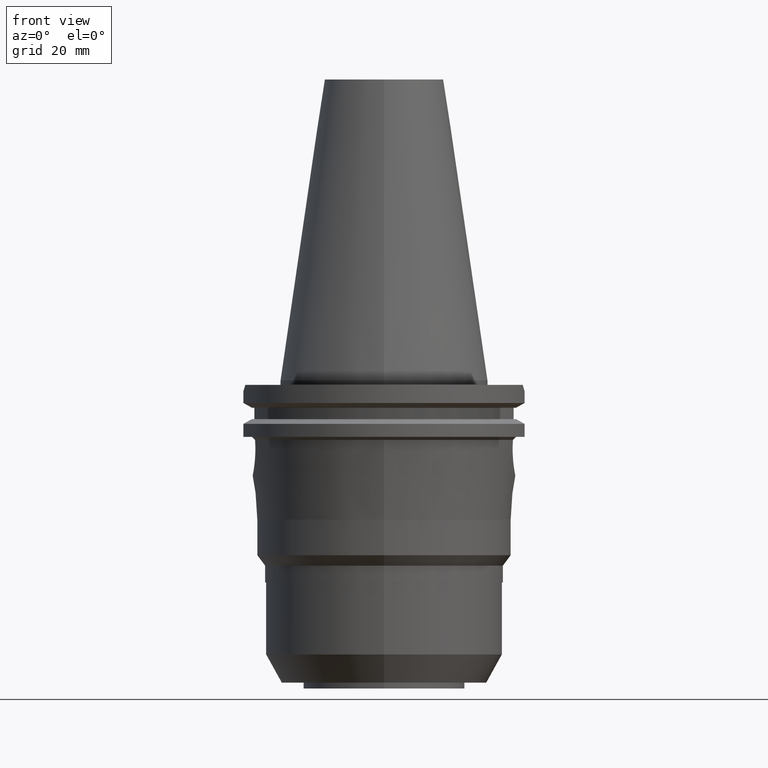
[diagram: clean part render]
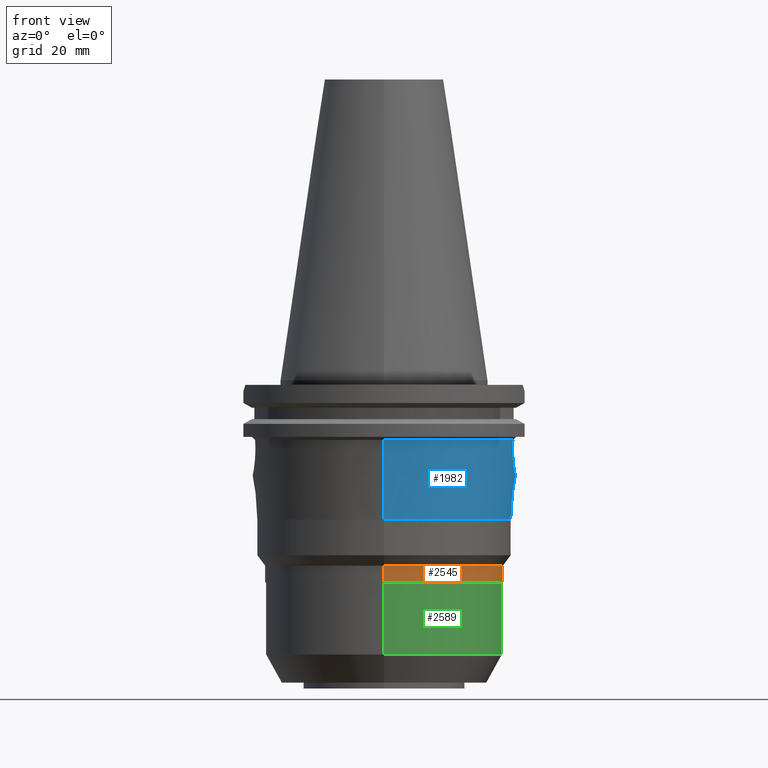
[diagram: same view with three faces highlighted in distinct colors, each labeled with its STEP entity id]
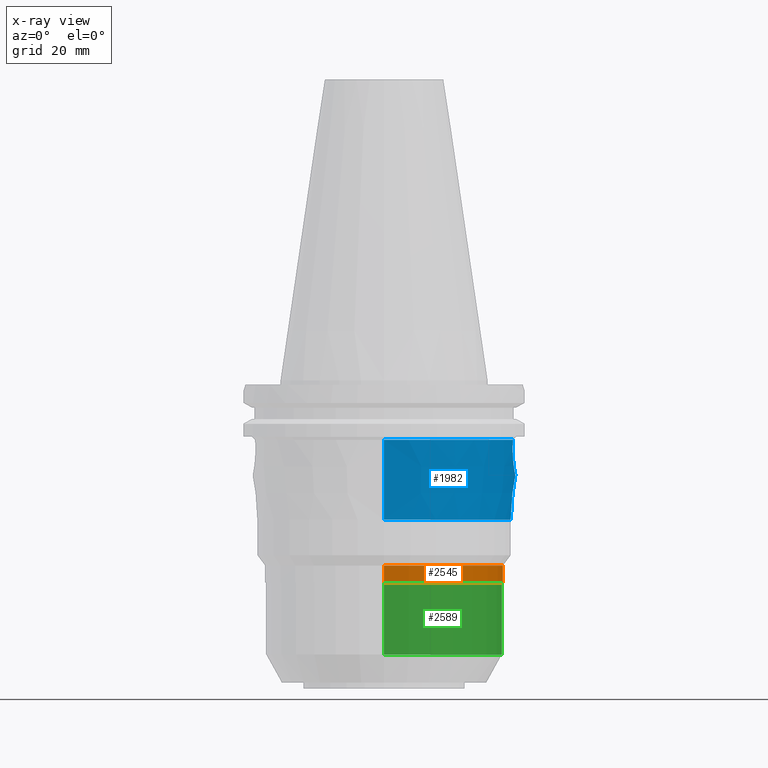
[diagram: x-ray of the same camera — body ghosted, the three highlighted faces saturated]
A machine part, front view with three faces highlighted in distinct colors.
The next image is the same camera in x-ray (body ghosted, the three faces saturated) — at least one of them is partly hidden behind the body in this view.
Their STEP definitions:

[orange] entity #2545 — the highlighted cylindrical surface (partial cylindrical patch) has radius 40.35 mm, axis along (0, 0, -1).
#1106=CARTESIAN_POINT('',(0.E0,0.E0,-6.251666877729E1));
#1107=DIRECTION('',(0.E0,0.E0,-1.E0));
#1108=DIRECTION('',(0.E0,1.E0,0.E0));
#1109=AXIS2_PLACEMENT_3D('',#1106,#1107,#1108);
#1145=DIRECTION('',(0.E0,2.988031265328E-13,-1.E0));
#1146=VECTOR('',#1145,5.683331222709E0);
#1147=CARTESIAN_POINT('',(0.E0,-4.035E1,-6.251666877729E1));
#1148=LINE('',#1147,#1146);
#1152=DIRECTION('',(0.E0,-2.975529042460E-13,-1.E0));
#1153=VECTOR('',#1152,5.683331222709E0);
#1154=CARTESIAN_POINT('',(0.E0,4.035E1,-6.251666877729E1));
#1155=LINE('',#1154,#1153);
#1159=CARTESIAN_POINT('',(0.E0,2.594781638033E-14,-6.82E1));
#1160=DIRECTION('',(0.E0,0.E0,1.E0));
#1161=DIRECTION('',(0.E0,-1.E0,0.E0));
#1162=AXIS2_PLACEMENT_3D('',#1159,#1160,#1161);
#1555=CARTESIAN_POINT('',(0.E0,-4.035E1,-6.82E1));
#1556=CARTESIAN_POINT('',(0.E0,4.035E1,-6.82E1));
#1557=VERTEX_POINT('',#1555);
#1558=VERTEX_POINT('',#1556);
#1559=CARTESIAN_POINT('',(0.E0,4.035E1,-6.251666877729E1));
#1560=VERTEX_POINT('',#1559);
#1561=CARTESIAN_POINT('',(0.E0,-4.035E1,-6.251666877729E1));
#1562=VERTEX_POINT('',#1561);
#2533=CARTESIAN_POINT('',(0.E0,2.594781638033E-14,1.1188E2));
#2534=DIRECTION('',(0.E0,0.E0,-1.E0));
#2535=DIRECTION('',(0.E0,-1.E0,0.E0));
#2536=AXIS2_PLACEMENT_3D('',#2533,#2534,#2535);
#2537=CYLINDRICAL_SURFACE('',#2536,4.035E1);
#2538=ORIENTED_EDGE('',*,*,#2523,.T.);
#2540=ORIENTED_EDGE('',*,*,#2539,.F.);
#2541=ORIENTED_EDGE('',*,*,#2526,.F.);
#2542=ORIENTED_EDGE('',*,*,#2497,.F.);
#2543=EDGE_LOOP('',(#2538,#2540,#2541,#2542));
#2544=FACE_OUTER_BOUND('',#2543,.F.);
#1110=CIRCLE('',#1109,4.035E1);
#1163=CIRCLE('',#1162,4.035E1);
#2497=EDGE_CURVE('',#1560,#1562,#1110,.T.);
#2523=EDGE_CURVE('',#1560,#1558,#1155,.T.);
#2526=EDGE_CURVE('',#1562,#1557,#1148,.T.);
#2539=EDGE_CURVE('',#1557,#1558,#1163,.T.);
#2545=ADVANCED_FACE('',(#2544),#2537,.T.);

[blue] entity #1982 — the highlighted conical surface has half-angle 5.111 deg.
#273=CARTESIAN_POINT('',(4.353268857043E1,1.292335010828E1,-2.004999916311E1));
#315=CARTESIAN_POINT('',(4.353268724557E1,-1.292335466217E1,-2.004999872561E1));
#316=CARTESIAN_POINT('',(4.346713339189E1,-1.286004492173E1,-2.095406222624E1));
#317=CARTESIAN_POINT('',(4.339358714810E1,-1.254361217707E1,-2.275600169048E1));
#318=CARTESIAN_POINT('',(4.344966396984E1,-1.149295744251E1,-2.533365231666E1));
#319=CARTESIAN_POINT('',(4.362941724810E1,-9.933935771800E0,-2.761192343704E1));
#320=CARTESIAN_POINT('',(4.387373557662E1,-7.910855387955E0,-2.953135237471E1));
#321=CARTESIAN_POINT('',(4.411638673118E1,-5.490403959350E0,-3.099201355121E1));
#322=CARTESIAN_POINT('',(4.429069680968E1,-2.808943056756E0,-3.189631965222E1));
#323=CARTESIAN_POINT('',(4.433267309078E1,-9.361407318624E-1,
-3.210000118751E1));
#324=CARTESIAN_POINT('',(4.433267309078E1,3.530343332241E-14,
-3.210000118751E1));
#329=CARTESIAN_POINT('',(4.433267309078E1,3.530343332241E-14,
-3.210000118751E1));
#330=CARTESIAN_POINT('',(4.433267309078E1,9.234150173798E-1,-3.210000118751E1));
#331=CARTESIAN_POINT('',(4.429185837563E1,2.776579329998E0,-3.190192571770E1));
#332=CARTESIAN_POINT('',(4.411972627293E1,5.450561089102E0,-3.101013136943E1));
#333=CARTESIAN_POINT('',(4.387749554908E1,7.878259022296E0,-2.955679686826E1));
#334=CARTESIAN_POINT('',(4.363176094144E1,9.914952546093E0,-2.763553976695E1));
#335=CARTESIAN_POINT('',(4.345022797713E1,1.148577285270E1,-2.534909235121E1));
#336=CARTESIAN_POINT('',(4.339335768296E1,1.254318337487E1,-2.275996780525E1));
#337=CARTESIAN_POINT('',(4.346708413652E1,1.285999140031E1,-2.095476060189E1));
#338=CARTESIAN_POINT('',(4.353268857043E1,1.292335010828E1,-2.004999916311E1));
#343=CARTESIAN_POINT('',(0.E0,0.E0,-2.005E1));
#344=DIRECTION('',(0.E0,0.E0,1.E0));
#345=DIRECTION('',(9.586493648216E-1,2.845898721445E-1,0.E0));
#346=AXIS2_PLACEMENT_3D('',#343,#344,#345);
#351=DIRECTION('',(0.E0,-8.908552138387E-2,-9.960239805746E-1));
#352=VECTOR('',#351,2.705758146953E1);
#353=CARTESIAN_POINT('',(0.E0,4.541043875260E1,-2.005E1));
#354=LINE('',#353,#352);
#358=CARTESIAN_POINT('',(0.E0,0.E0,-4.7E1));
#359=DIRECTION('',(0.E0,0.E0,-1.E0));
#360=DIRECTION('',(0.E0,1.E0,0.E0));
#361=AXIS2_PLACEMENT_3D('',#358,#359,#360);
#366=CARTESIAN_POINT('',(0.E0,0.E0,-2.005E1));
#367=DIRECTION('',(0.E0,0.E0,1.E0));
#368=DIRECTION('',(0.E0,-1.E0,0.E0));
#369=AXIS2_PLACEMENT_3D('',#366,#367,#368);
#395=DIRECTION('',(0.E0,8.908552138387E-2,-9.960239805746E-1));
#396=VECTOR('',#395,2.705758146953E1);
#397=CARTESIAN_POINT('',(0.E0,-4.541043875260E1,-2.005E1));
#398=LINE('',#397,#396);
#793=CARTESIAN_POINT('',(4.353268724557E1,-1.292335466217E1,-2.004999872561E1));
#1567=CARTESIAN_POINT('',(0.E0,4.3E1,-4.7E1));
#1568=VERTEX_POINT('',#1567);
#1569=CARTESIAN_POINT('',(0.E0,-4.3E1,-4.7E1));
#1570=VERTEX_POINT('',#1569);
#1573=CARTESIAN_POINT('',(0.E0,-4.541043875260E1,-2.005E1));
#1574=VERTEX_POINT('',#1573);
#1575=CARTESIAN_POINT('',(0.E0,4.541043875260E1,-2.005E1));
#1576=VERTEX_POINT('',#1575);
#1586=VERTEX_POINT('',#793);
#1590=VERTEX_POINT('',#273);
#1725=VERTEX_POINT('',#329);
#1964=CARTESIAN_POINT('',(0.E0,0.E0,-3.3525E1));
#1965=DIRECTION('',(0.E0,0.E0,1.E0));
#1966=DIRECTION('',(0.E0,1.E0,0.E0));
#1967=AXIS2_PLACEMENT_3D('',#1964,#1965,#1966);
#1968=CONICAL_SURFACE('',#1967,4.420521937630E1,5.111E0);
#1969=ORIENTED_EDGE('',*,*,#1951,.T.);
#1970=ORIENTED_EDGE('',*,*,#1949,.T.);
#1971=ORIENTED_EDGE('',*,*,#1939,.T.);
#1973=ORIENTED_EDGE('',*,*,#1972,.T.);
#1975=ORIENTED_EDGE('',*,*,#1974,.T.);
#1977=ORIENTED_EDGE('',*,*,#1976,.F.);
#1979=ORIENTED_EDGE('',*,*,#1978,.T.);
#1980=EDGE_LOOP('',(#1969,#1970,#1971,#1973,#1975,#1977,#1979));
#1981=FACE_OUTER_BOUND('',#1980,.F.);
#325=B_SPLINE_CURVE_WITH_KNOTS('',3,(#315,#316,#317,#318,#319,#320,#321,#322,
#323,#324),.UNSPECIFIED.,.F.,.F.,(4,1,1,1,1,1,1,4),(0.E0,1.428571428571E-1,
2.857142857143E-1,4.285714285714E-1,5.714285714286E-1,7.142857142857E-1,
8.571428571429E-1,1.E0),.UNSPECIFIED.);
#339=B_SPLINE_CURVE_WITH_KNOTS('',3,(#329,#330,#331,#332,#333,#334,#335,#336,
#337,#338),.UNSPECIFIED.,.F.,.F.,(4,1,1,1,1,1,1,4),(0.E0,1.428571428571E-1,
2.857142857143E-1,4.285714285714E-1,5.714285714286E-1,7.142857142857E-1,
8.571428571429E-1,1.E0),.UNSPECIFIED.);
#347=CIRCLE('',#346,4.541043875260E1);
#362=CIRCLE('',#361,4.3E1);
#370=CIRCLE('',#369,4.541043875260E1);
#1939=EDGE_CURVE('',#1590,#1576,#347,.T.);
#1949=EDGE_CURVE('',#1725,#1590,#339,.T.);
#1951=EDGE_CURVE('',#1586,#1725,#325,.T.);
#1972=EDGE_CURVE('',#1576,#1568,#354,.T.);
#1974=EDGE_CURVE('',#1568,#1570,#362,.T.);
#1976=EDGE_CURVE('',#1574,#1570,#398,.T.);
#1978=EDGE_CURVE('',#1574,#1586,#370,.T.);
#1982=ADVANCED_FACE('',(#1981),#1968,.T.);

[green] entity #2589 — the highlighted cylindrical surface (partial cylindrical patch) has radius 40 mm, axis along (0, 0, -1).
#1183=CARTESIAN_POINT('',(0.E0,2.594781638033E-14,-6.82E1));
#1184=DIRECTION('',(0.E0,0.E0,-1.E0));
#1185=DIRECTION('',(0.E0,1.E0,0.E0));
#1186=AXIS2_PLACEMENT_3D('',#1183,#1184,#1185);
#1191=DIRECTION('',(0.E0,-1.140377230232E-14,-1.E0));
#1192=VECTOR('',#1191,2.43E1);
#1193=CARTESIAN_POINT('',(0.E0,-4.E1,-6.82E1));
#1194=LINE('',#1193,#1192);
#1198=DIRECTION('',(0.E0,1.111136788431E-14,-1.E0));
#1199=VECTOR('',#1198,2.43E1);
#1200=CARTESIAN_POINT('',(0.E0,4.E1,-6.82E1));
#1201=LINE('',#1200,#1199);
#1212=CARTESIAN_POINT('',(0.E0,0.E0,-9.25E1));
#1213=DIRECTION('',(0.E0,0.E0,1.E0));
#1214=DIRECTION('',(0.E0,-1.E0,0.E0));
#1215=AXIS2_PLACEMENT_3D('',#1212,#1213,#1214);
#1547=CARTESIAN_POINT('',(0.E0,4.E1,-9.25E1));
#1548=VERTEX_POINT('',#1547);
#1549=CARTESIAN_POINT('',(0.E0,-4.E1,-9.25E1));
#1550=VERTEX_POINT('',#1549);
#1551=CARTESIAN_POINT('',(0.E0,4.E1,-6.82E1));
#1552=VERTEX_POINT('',#1551);
#1553=CARTESIAN_POINT('',(0.E0,-4.E1,-6.82E1));
#1554=VERTEX_POINT('',#1553);
#2577=CARTESIAN_POINT('',(0.E0,2.594781638033E-14,1.1188E2));
#2578=DIRECTION('',(0.E0,0.E0,-1.E0));
#2579=DIRECTION('',(0.E0,-1.E0,0.E0));
#2580=AXIS2_PLACEMENT_3D('',#2577,#2578,#2579);
#2581=CYLINDRICAL_SURFACE('',#2580,4.E1);
#2582=ORIENTED_EDGE('',*,*,#2567,.T.);
#2584=ORIENTED_EDGE('',*,*,#2583,.F.);
#2585=ORIENTED_EDGE('',*,*,#2570,.F.);
#2586=ORIENTED_EDGE('',*,*,#2557,.F.);
#2587=EDGE_LOOP('',(#2582,#2584,#2585,#2586));
#2588=FACE_OUTER_BOUND('',#2587,.F.);
#1187=CIRCLE('',#1186,4.E1);
#1216=CIRCLE('',#1215,4.E1);
#2557=EDGE_CURVE('',#1552,#1554,#1187,.T.);
#2567=EDGE_CURVE('',#1552,#1548,#1201,.T.);
#2570=EDGE_CURVE('',#1554,#1550,#1194,.T.);
#2583=EDGE_CURVE('',#1550,#1548,#1216,.T.);
#2589=ADVANCED_FACE('',(#2588),#2581,.T.);